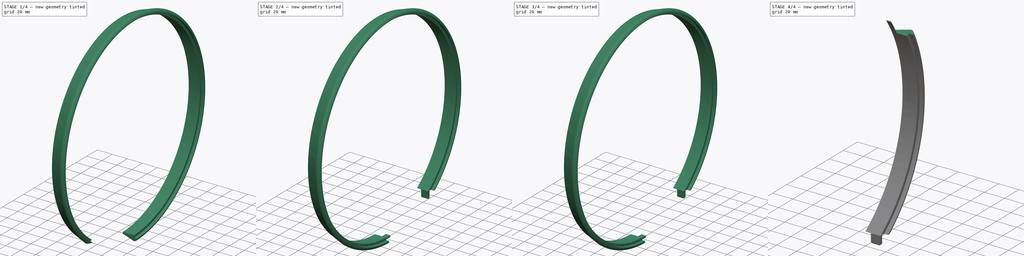
[diagram: build sequence overview — one tinted view per stage of 4, left to right]
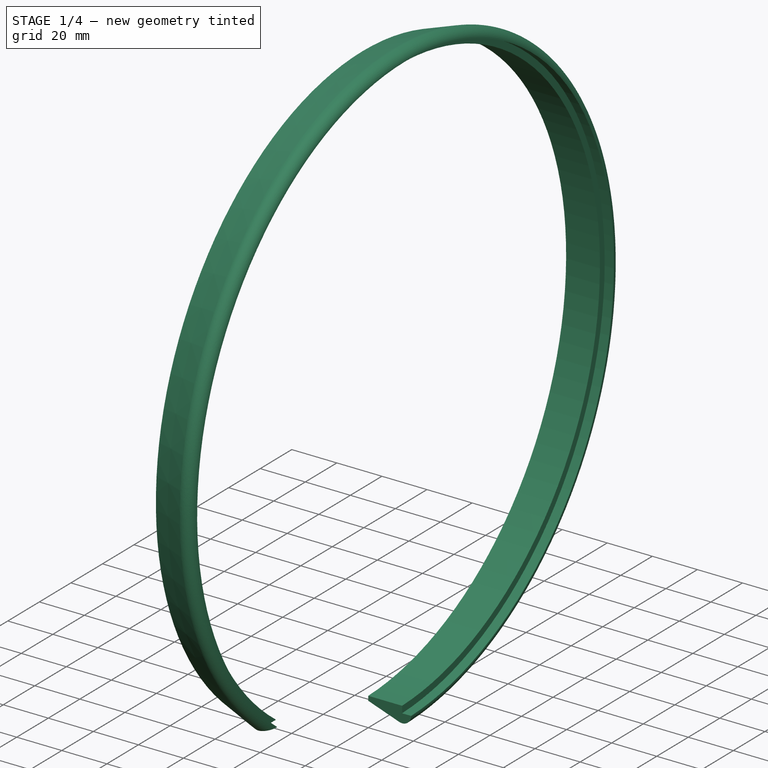
[diagram: stage 1 of 4 — iso view after this stage's code; geometry added in this stage tinted green]
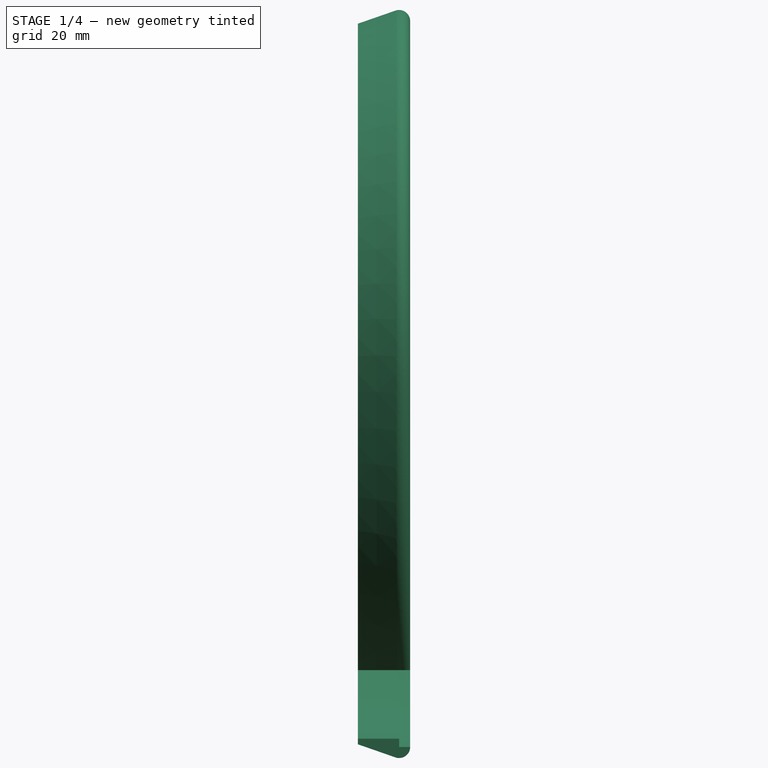
[diagram: stage 1 of 4 — front view after this stage's code; geometry added in this stage tinted green]
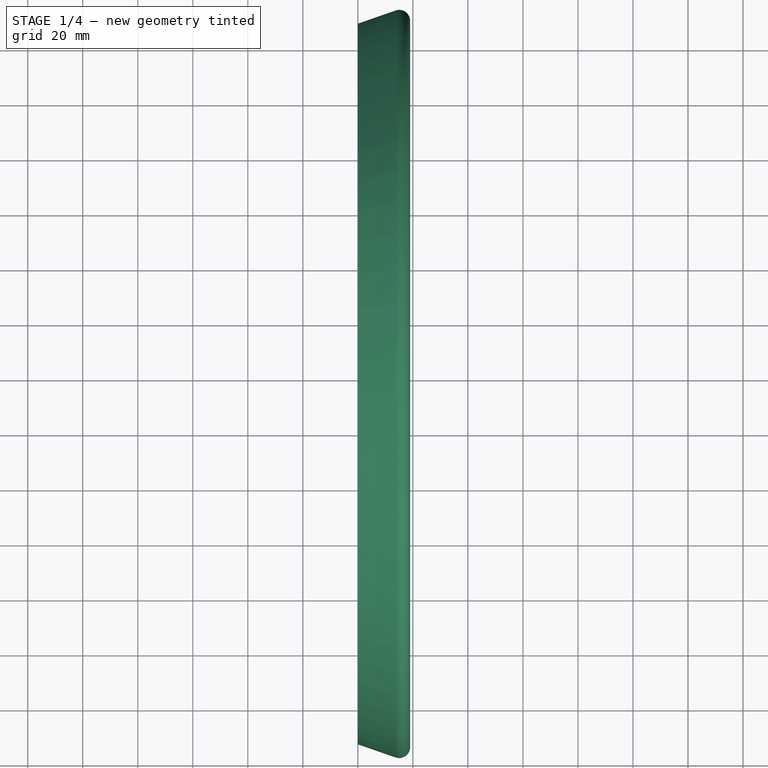
[diagram: stage 1 of 4 — top view after this stage's code; geometry added in this stage tinted green]
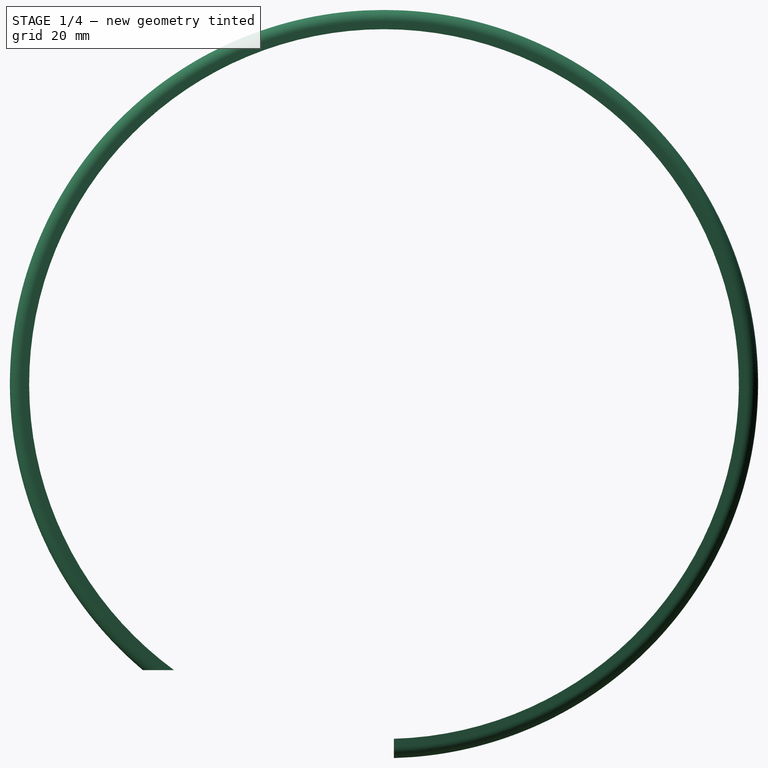
[diagram: stage 1 of 4 — right view after this stage's code; geometry added in this stage tinted green]
FCSTD DOCUMENT  (FreeCAD 0.16R6706 (Git))
Label: fancover
License: All rights reserved
LicenseURL: http://en.wikipedia.org/wiki/All_rights_reserved
objects: Sketcher::SketchObject×8, PartDesign::Chamfer×5, PartDesign::Pad×4, PartDesign::Pocket×2, PartDesign::Revolution×1, Part::Cut×1, Part::Mirroring×1
note: 29 computed .brp shape members not serialized (recipe doc carries the construction recipe); baked Part::Feature solids carry a one-line shape summary decoded from their .brp

FEATURE [Sketcher::SketchObject] Sketch
  Placement = pos=(0,136.4,0) rot=(1,0,0;1.5708rad)
  sketch-geometry (6):
    g0: LineSegment StartX=0 StartY=129 StartZ=0 EndX=15 EndY=129 EndZ=0
    g1: LineSegment StartX=15 StartY=129 StartZ=0 EndX=15 EndY=132 EndZ=0
    g2: LineSegment StartX=15 StartY=132 StartZ=0 EndX=19 EndY=132 EndZ=0
    g3: LineSegment StartX=0 StartY=129 StartZ=0 EndX=0 EndY=131 EndZ=0
    g4: LineSegment StartX=0 StartY=131 StartZ=0 EndX=13.6816 EndY=135.776 EndZ=0
    g5: ArcOfCircle CenterX=15 CenterY=132 CenterZ=0 NormalX=0 NormalY=0 NormalZ=1 Radius=4 StartAngle=0 EndAngle=1.90668
  constraints (17):
    c: PointOnObject(g0,g-2)
    c: Horizontal(g0)
    c: Coincident(g0,g1)
    c: Coincident(g1,g2)
    c: Horizontal(g2)
    c: Coincident(g0,g3)
    c: PointOnObject(g3,g-2)
    c: Coincident(g3,g4)
    c: Coincident(g5,g1)
    c: Coincident(g5,g2)
    c: Tangent(g4,g5) = 1.5708
    c: Vertical(g1)
    c: Distance(g1) = 3
    c: Distance(g2) = 4
    c: Distance(g0) = 15
    c: DistanceY(g-1,g0) = 129
    c: Distance(g3) = 2
FEATURE [PartDesign::Revolution] Revolution
  Angle = 360
  Axis = (1,0,0)
  Base = (0,136.4,0)
  Placement = pos=(0,136.4,0) rot=(1,0,0;1.5708rad)
  ReferenceAxis = -> Sketch [H_Axis]
  Sketch = -> Sketch
FEATURE [Sketcher::SketchObject] Sketch001
  Placement = pos=(0,0,0) rot=(1,0,0;1.5708rad)
  sketch-geometry (4):
    g0: LineSegment StartX=26.3001 StartY=-86.0128 StartZ=0 EndX=-7.20787 EndY=-86.0128 EndZ=0
    g1: LineSegment StartX=-7.20787 StartY=-86.0128 StartZ=0 EndX=-7.20787 EndY=107.855 EndZ=0
    g2: LineSegment StartX=-7.20787 StartY=107.855 StartZ=0 EndX=26.3001 EndY=107.855 EndZ=0
    g3: LineSegment StartX=26.3001 StartY=107.855 StartZ=0 EndX=26.3001 EndY=-86.0128 EndZ=0
  constraints (8):
    c: Coincident(g0,g1)
    c: Coincident(g1,g2)
    c: Coincident(g2,g3)
    c: Coincident(g3,g0)
    c: Horizontal(g0)
    c: Horizontal(g2)
    c: Vertical(g1)
    c: Vertical(g3)
FEATURE [Sketcher::SketchObject] Sketch002
  Placement = pos=(15,0,0) rot=(0.57735,0.57735,0.57735;2.0944rad)
  sketch-geometry (3):
    g0: Circle CenterX=0 CenterY=0 CenterZ=0 NormalX=0 NormalY=0 NormalZ=1 Radius=129
    g1: Circle CenterX=0 CenterY=0 CenterZ=0 NormalX=0 NormalY=0 NormalZ=1 Radius=5
    g2: Circle CenterX=0 CenterY=0 CenterZ=0 NormalX=0 NormalY=0 NormalZ=1 Radius=124
  constraints (6):
    c: Coincident(g0,g-1)
    c: Radius(g0) = 129
    c: Coincident(g1,g-1)
    c: Radius(g1) = 5
    c: Coincident(g2,g-1)
    c: Radius(g2) = 124
FEATURE [PartDesign::Pad] Pad
  Length = 10
  Length2 = 100
  Placement = pos=(0,0,0) rot=(1,0,0;1.5708rad)
  Sketch = -> Sketch001
  Type = 0
FEATURE [Part::Cut] Cut
  Base = -> Revolution
  Tool = -> Pad
FEATURE [Sketcher::SketchObject] Sketch003
  Placement = pos=(0,0,0) rot=(0.57735,-0.57735,-0.57735;2.0944rad)
  Support = -> Cut [Face6]
  sketch-geometry (4):
    g0: LineSegment StartX=0 StartY=-150 StartZ=0 EndX=-140 EndY=-150 EndZ=0
    g1: LineSegment StartX=-140 StartY=-150 StartZ=0 EndX=-140 EndY=-104 EndZ=0
    g2: LineSegment StartX=-140 StartY=-104 StartZ=0 EndX=0 EndY=-104 EndZ=0
    g3: LineSegment StartX=0 StartY=-104 StartZ=0 EndX=0 EndY=-150 EndZ=0
  constraints (12):
    c: Coincident(g0,g1)
    c: Coincident(g1,g2)
    c: Coincident(g2,g3)
    c: Coincident(g3,g0)
    c: Horizontal(g0)
    c: Horizontal(g2)
    c: Vertical(g1)
    c: Vertical(g3)
    c: PointOnObject(g2,g-2)
    c: Distance(g1) = 46
    c: DistanceY(g0,g-1) = 150
    c: Distance(g0) = 140
FEATURE [PartDesign::Pocket] Pocket
  Length = 21
  Sketch = -> Sketch003
  Type = 0
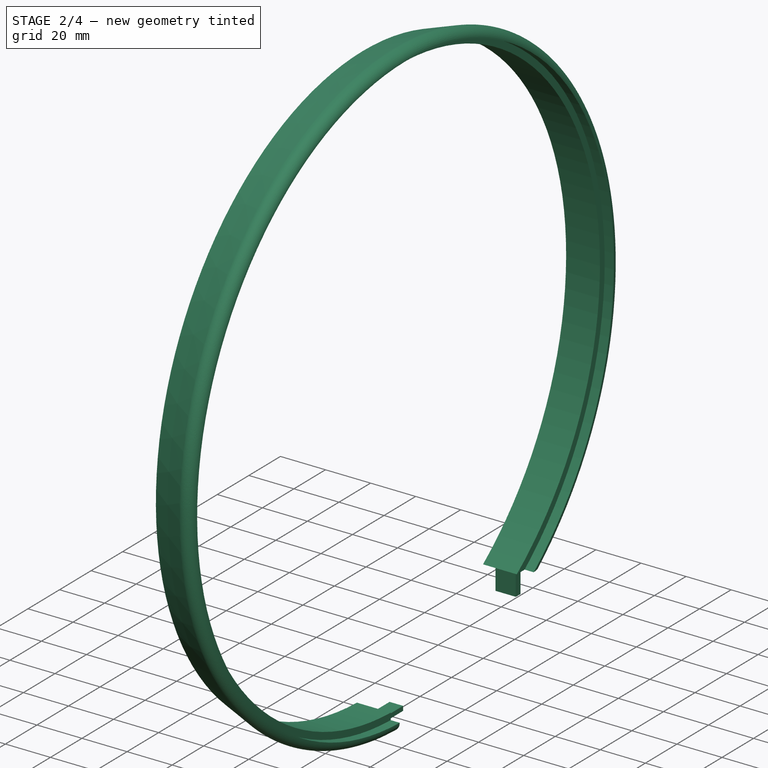
[diagram: stage 2 of 4 — iso view after this stage's code; geometry added in this stage tinted green]
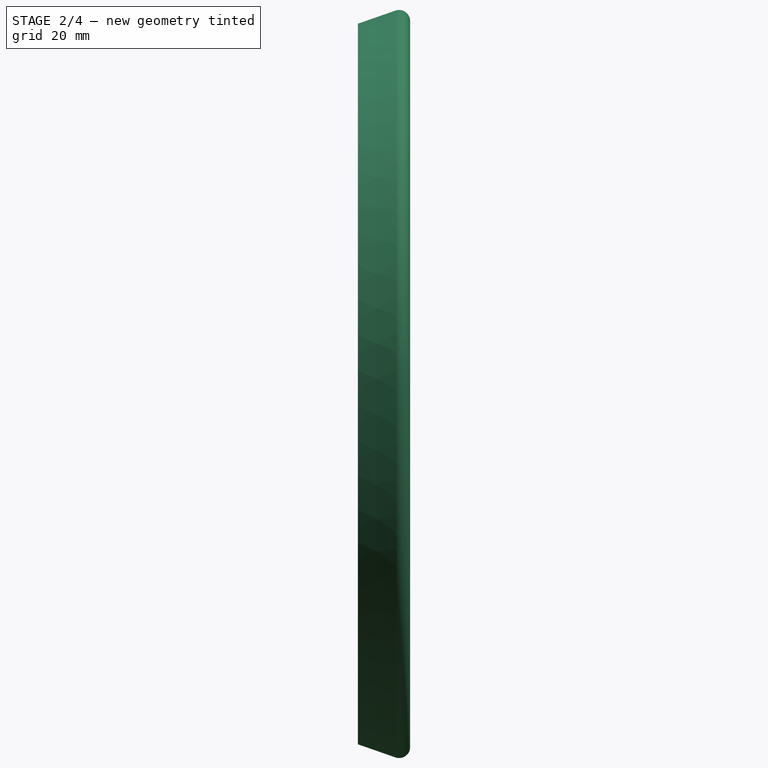
[diagram: stage 2 of 4 — front view after this stage's code; geometry added in this stage tinted green]
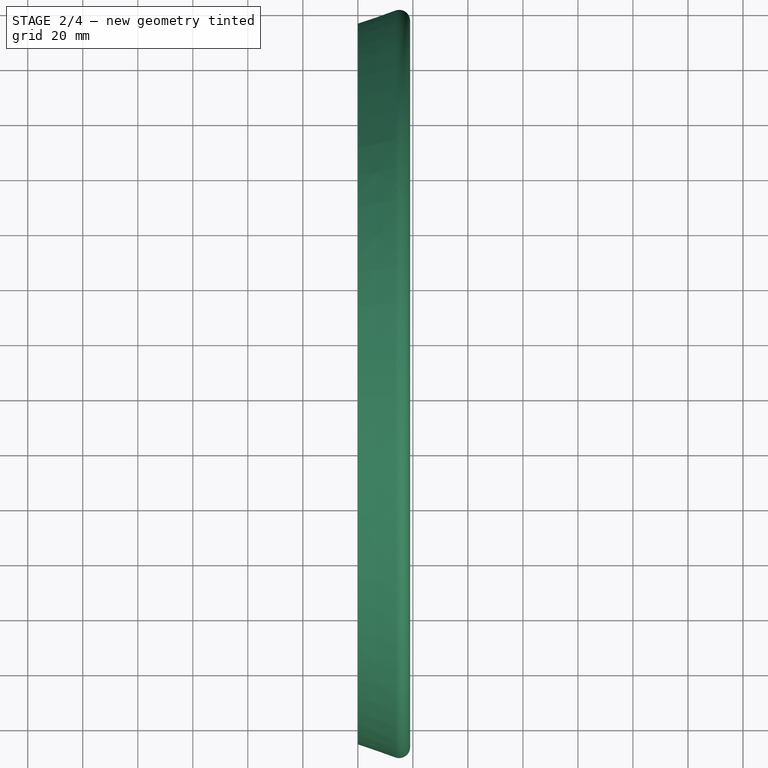
[diagram: stage 2 of 4 — top view after this stage's code; geometry added in this stage tinted green]
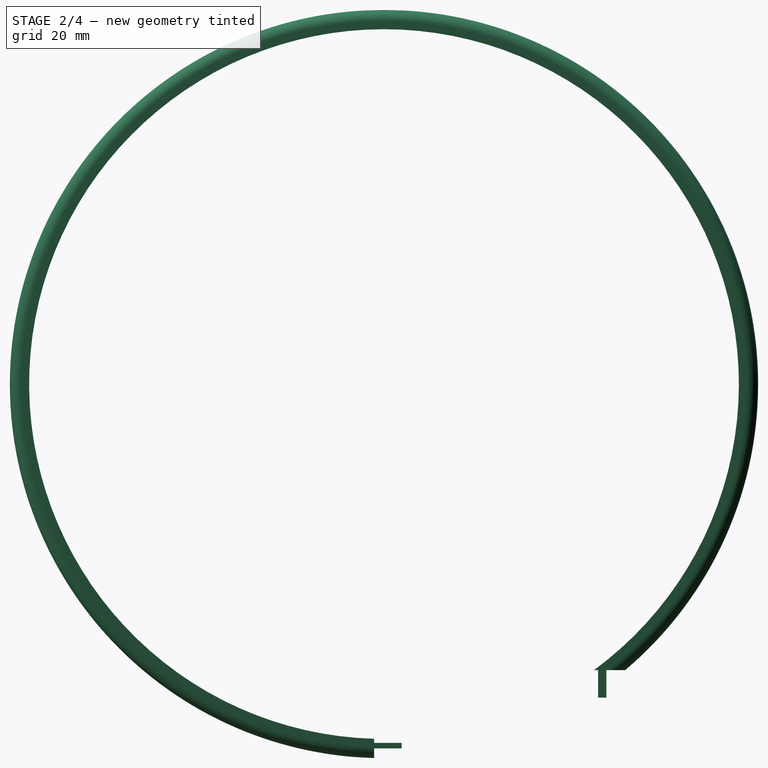
[diagram: stage 2 of 4 — right view after this stage's code; geometry added in this stage tinted green]
FEATURE [Part::Mirroring] Part__Mirroring  label="Pocket (Mirror #1)"
  Base = (0,0,0)
  Normal = (0,1,0)
  Source = -> Pocket
FEATURE [Sketcher::SketchObject] Sketch004
  ExternalGeometry = -> [Part__Mirroring]
  Placement = pos=(0,0,-104) rot=(1,0,0;3.14159rad)
  Support = -> Part__Mirroring [Face4]
  sketch-geometry (4):
    g0: LineSegment StartX=13.5 StartY=58.5783 StartZ=0 EndX=4.5 EndY=58.5783 EndZ=0
    g1: LineSegment StartX=4.5 StartY=58.5783 StartZ=0 EndX=4.5 EndY=55.5783 EndZ=0
    g2: LineSegment StartX=4.5 StartY=55.5783 StartZ=0 EndX=13.5 EndY=55.5783 EndZ=0
    g3: LineSegment StartX=13.5 StartY=55.5783 StartZ=0 EndX=13.5 EndY=58.5783 EndZ=0
  constraints (12):
    c: Coincident(g0,g1)
    c: Coincident(g1,g2)
    c: Coincident(g2,g3)
    c: Coincident(g3,g0)
    c: Horizontal(g0)
    c: Horizontal(g2)
    c: Vertical(g1)
    c: Vertical(g3)
    c: Distance(g3) = 3
    c: Distance(g0) = 9
    c: DistanceX(g0,g-3) = 1.5
    c: DistanceY(g0,g-3) = 1.5
FEATURE [PartDesign::Pad] Pad001
  Length = 10
  Length2 = 100
  Sketch = -> Sketch004
  Type = 0
FEATURE [Sketcher::SketchObject] Sketch005
  ExternalGeometry = -> [Pad001]
  Placement = pos=(0,-140,0) rot=(0,0.707107,0.707107;3.14159rad)
  Support = -> Pad001 [Face6]
  sketch-geometry (4):
    g0: LineSegment StartX=-13.5 StartY=-130.45 StartZ=0 EndX=-7.5 EndY=-130.45 EndZ=0
    g1: LineSegment StartX=-7.5 StartY=-130.45 StartZ=0 EndX=-7.5 EndY=-132.45 EndZ=0
    g2: LineSegment StartX=-7.5 StartY=-132.45 StartZ=0 EndX=-13.5 EndY=-132.45 EndZ=0
    g3: LineSegment StartX=-13.5 StartY=-132.45 StartZ=0 EndX=-13.5 EndY=-130.45 EndZ=0
  constraints (12):
    c: Coincident(g0,g1)
    c: Coincident(g1,g2)
    c: Coincident(g2,g3)
    c: Coincident(g3,g0)
    c: Horizontal(g0)
    c: Horizontal(g2)
    c: Vertical(g1)
    c: Vertical(g3)
    c: Distance(g0) = 6
    c: Distance(g1) = 2
    c: DistanceX(g-3,g0) = 1.5
    c: DistanceY(g0,g-3) = 1.5
FEATURE [PartDesign::Pad] Pad002
  Length = 10
  Length2 = 100
  Sketch = -> Sketch005
  Type = 0
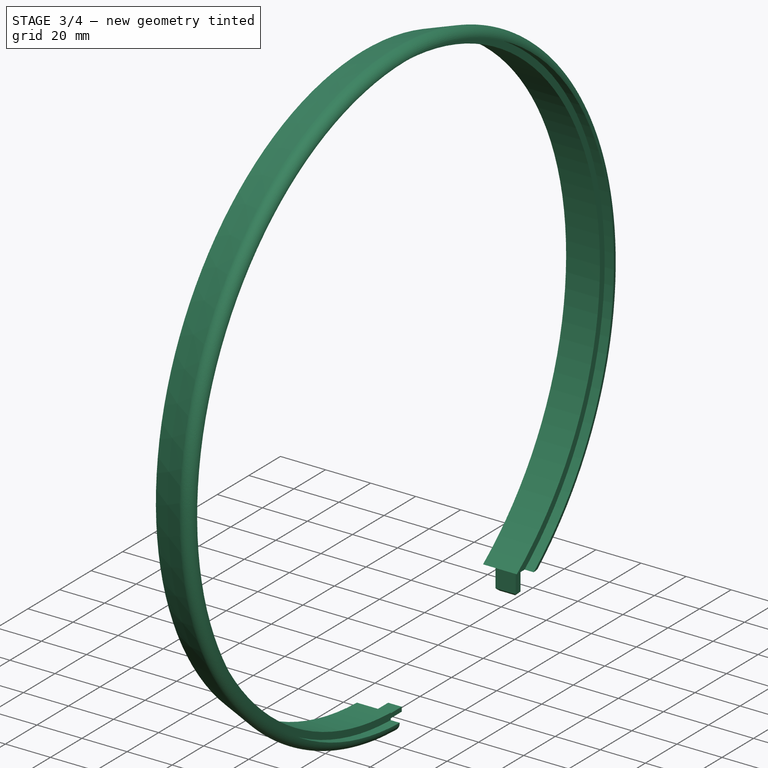
[diagram: stage 3 of 4 — iso view after this stage's code; geometry added in this stage tinted green]
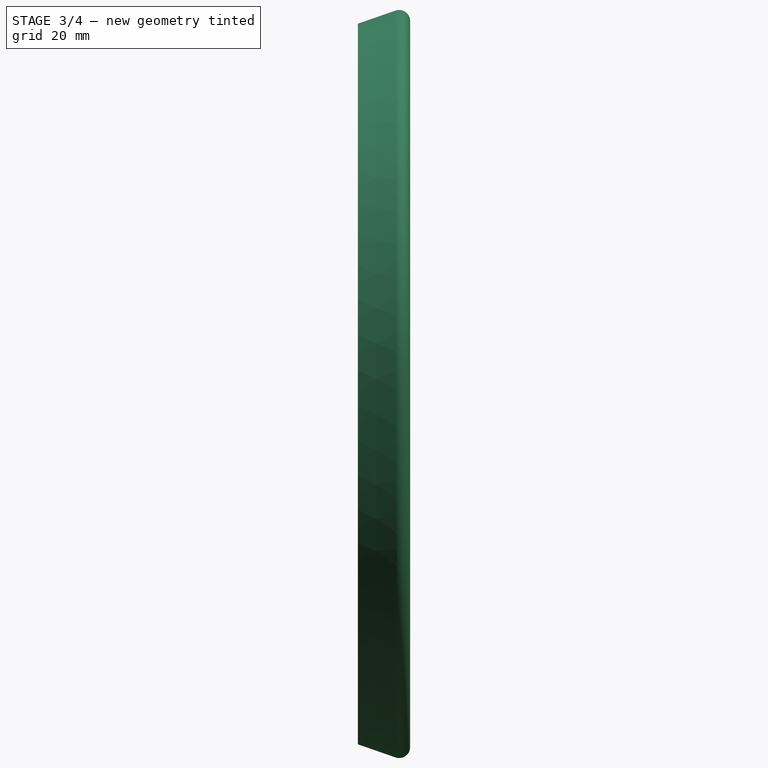
[diagram: stage 3 of 4 — front view after this stage's code; geometry added in this stage tinted green]
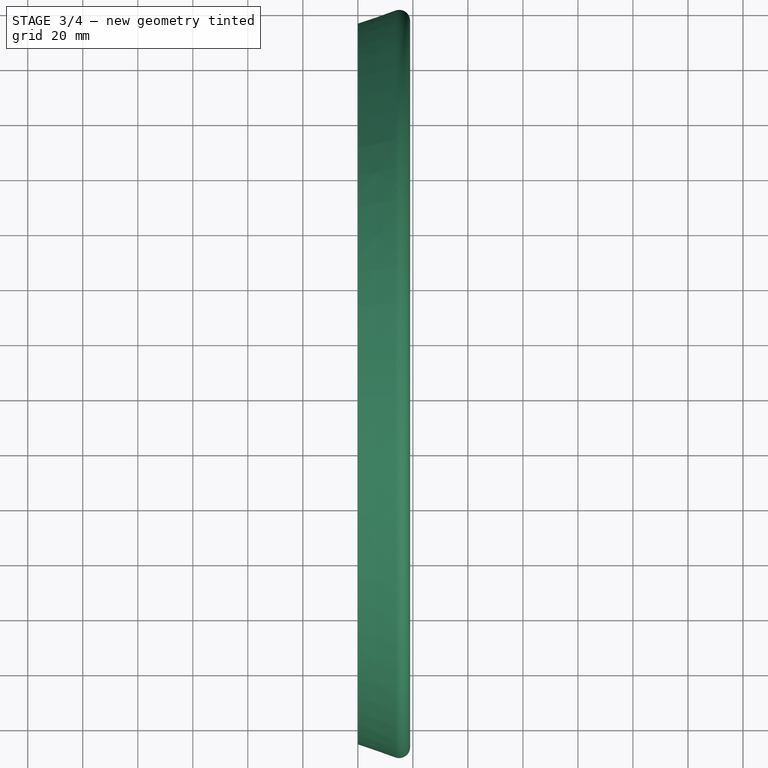
[diagram: stage 3 of 4 — top view after this stage's code; geometry added in this stage tinted green]
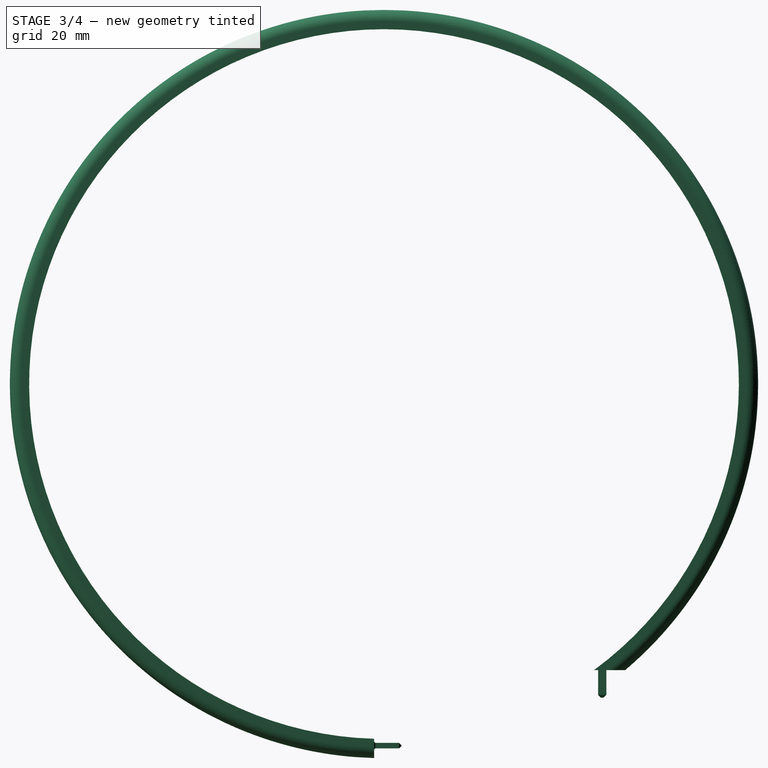
[diagram: stage 3 of 4 — right view after this stage's code; geometry added in this stage tinted green]
FEATURE [PartDesign::Chamfer] Chamfer002
  Base = -> Pad002 [Edge52,Edge46,Edge48,Edge50]
  Size = 0.9
FEATURE [PartDesign::Chamfer] Chamfer003
  Base = -> Chamfer002 [Edge7,Edge18,Edge3,Edge17]
  Size = 0.4
FEATURE [PartDesign::Chamfer] Chamfer
  Base = -> Chamfer003 [Edge62,Edge65,Edge67,Edge68]
  Size = 1
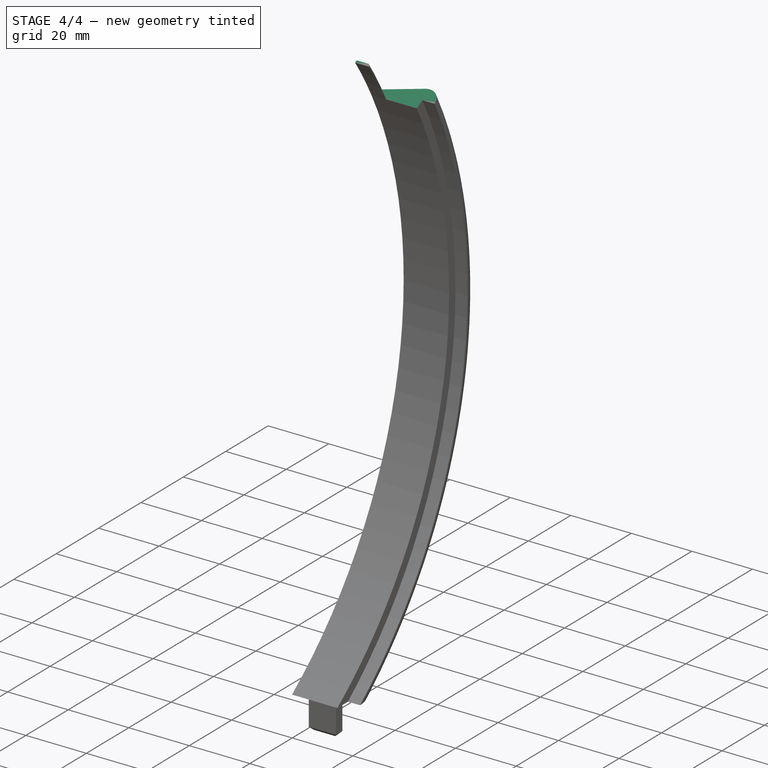
[diagram: stage 4 of 4 — iso view after this stage's code; geometry added in this stage tinted green]
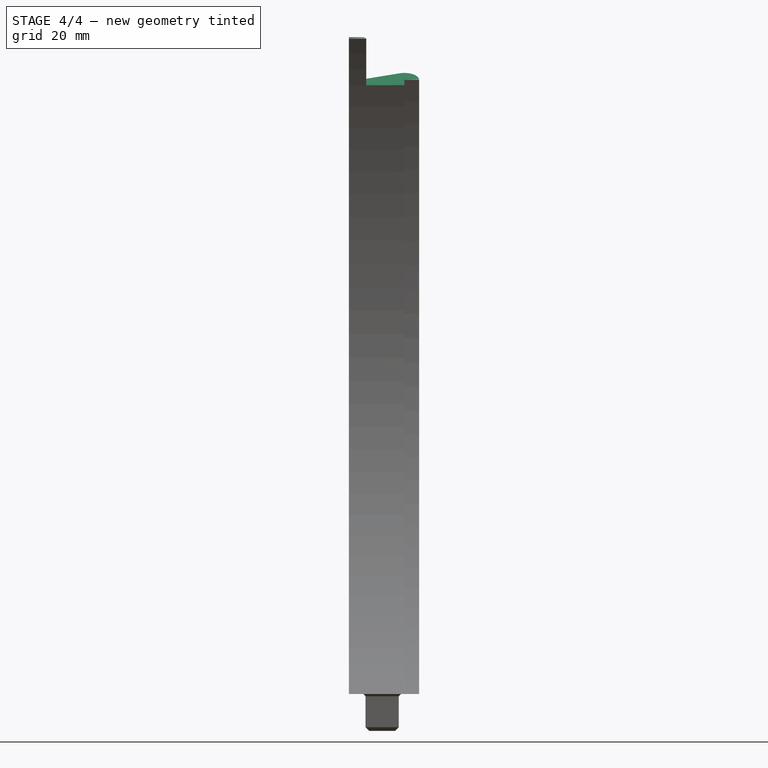
[diagram: stage 4 of 4 — front view after this stage's code; geometry added in this stage tinted green]
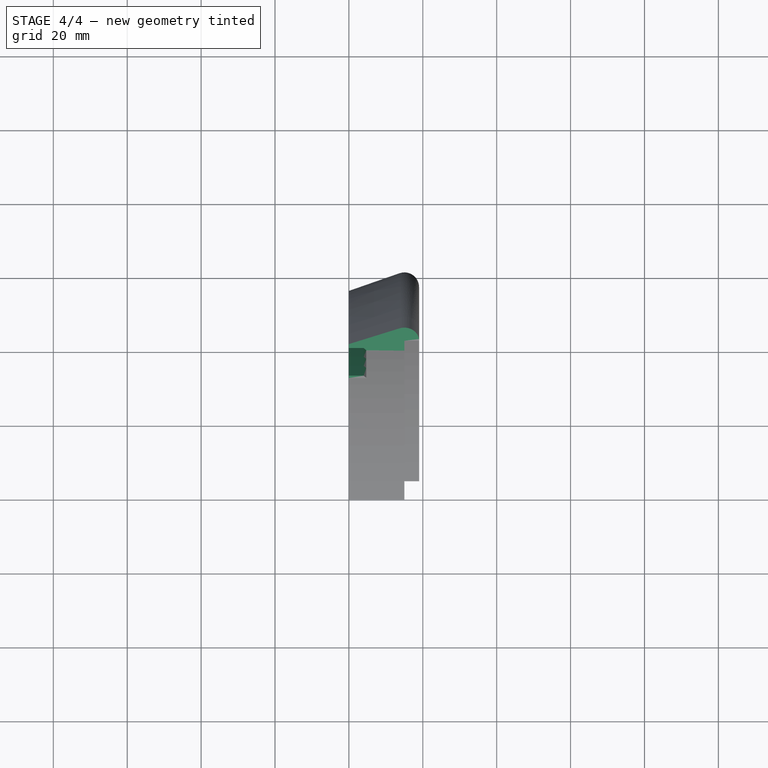
[diagram: stage 4 of 4 — top view after this stage's code; geometry added in this stage tinted green]
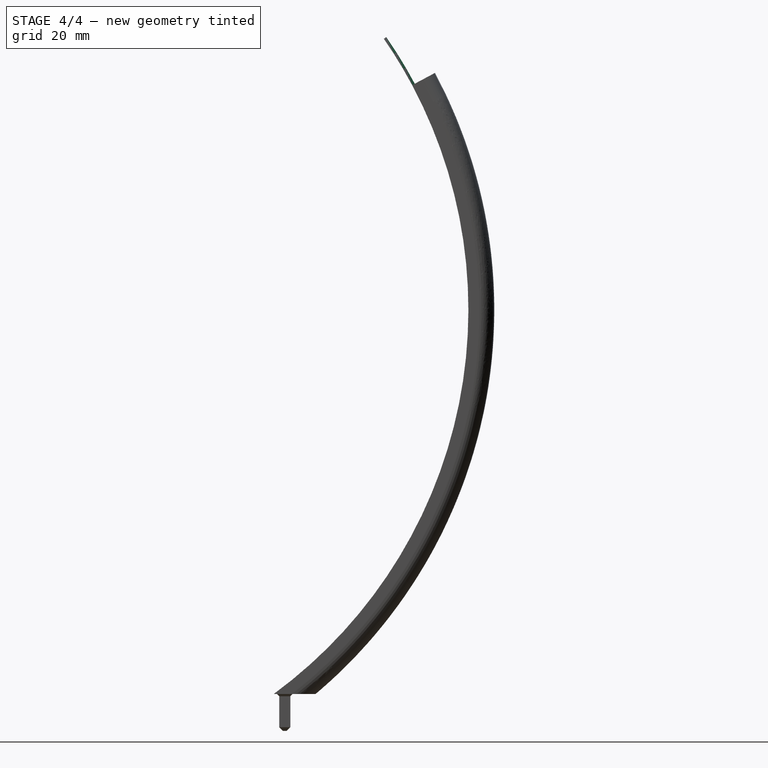
[diagram: stage 4 of 4 — right view after this stage's code; geometry added in this stage tinted green]
FEATURE [PartDesign::Chamfer] Chamfer004
  Base = -> Chamfer [Edge18,Edge3,Edge17,Edge7]
  Size = 0.6
FEATURE [Sketcher::SketchObject] Sketch006
  ExternalGeometry = -> [Chamfer004]
  Placement = pos=(15,0,0) rot=(0.57735,0.57735,0.57735;2.0944rad)
  Support = -> Chamfer004 [Face18]
  sketch-geometry (21):
    g0: LineSegment [constr] StartX=-136.4 StartY=0 StartZ=0 EndX=-191.281 EndY=166.679 EndZ=0
    g1: GeomPoint [constr] X=-136.4 Y=0 Z=0
    g2: GeomPoint [constr] X=-310.03 Y=-25.4257 Z=0
    g3: LineSegment [constr] StartX=-136.4 StartY=0 StartZ=0 EndX=-310.03 EndY=-25.4257 EndZ=0
    g4: LineSegment [constr] StartX=-136.4 StartY=0 StartZ=0 EndX=-141.186 EndY=-175.416 EndZ=0
    g5: LineSegment [constr] StartX=-136.4 StartY=0 StartZ=0 EndX=-28.3333 EndY=-138.258 EndZ=0
    g6: Circle [constr] CenterX=-136.4 CenterY=0 CenterZ=0 NormalX=0 NormalY=0 NormalZ=1 Radius=10
    g7: LineSegment [constr] StartX=-136.673 StartY=-9.99628 StartZ=0 EndX=-146.294 EndY=-1.44891 EndZ=0
    g8: LineSegment [constr] StartX=-146.294 StartY=-1.44891 StartZ=0 EndX=-139.527 EndY=9.49837 EndZ=0
    g9: LineSegment [constr] StartX=70.3046 StartY=-152.013 StartZ=0 EndX=270.305 EndY=-152.013 EndZ=0
    g10: LineSegment [constr] StartX=270.305 StartY=-152.013 StartZ=0 EndX=270.305 EndY=47.9865 EndZ=0
    g11: LineSegment [constr] StartX=270.305 StartY=47.9865 StartZ=0 EndX=70.3046 EndY=47.9865 EndZ=0
    g12: LineSegment [constr] StartX=70.3046 StartY=47.9865 StartZ=0 EndX=70.3046 EndY=-152.013 EndZ=0
    g13: LineSegment StartX=-136.4 StartY=0 StartZ=0 EndX=18.3701 EndY=82.7038 EndZ=0
    g14: LineSegment [constr] StartX=-139.527 StartY=9.49837 StartZ=0 EndX=-127.58 EndY=4.71297 EndZ=0
    g15: LineSegment [constr] StartX=-127.58 StartY=4.71297 StartZ=0 EndX=-130.242 EndY=-7.87879 EndZ=0
    g16: LineSegment StartX=-136.4 StartY=0 StartZ=0 EndX=-81.5191 EndY=-166.679 EndZ=0
    g17: ArcOfCircle CenterX=-136.4 CenterY=0 CenterZ=0 NormalX=0 NormalY=0 NormalZ=1 Radius=175.481 StartAngle=1.88888 EndAngle=3.287
    g18: ArcOfCircle CenterX=-136.4 CenterY=0 CenterZ=0 NormalX=0 NormalY=0 NormalZ=1 Radius=175.481 StartAngle=0.490761 EndAngle=1.88888
    g19: ArcOfCircle [constr] CenterX=-136.4 CenterY=0 CenterZ=0 NormalX=0 NormalY=0 NormalZ=1 Radius=175.481 StartAngle=5.03047 EndAngle=6.77395
    g20: ArcOfCircle CenterX=-136.4 CenterY=0 CenterZ=0 NormalX=0 NormalY=0 NormalZ=1 Radius=175.481 StartAngle=3.287 EndAngle=5.03047
  constraints (56):
    c: Coincident(g0,g-3)
    c: Coincident(g1,g0)
    c: Coincident(g3,g0)
    c: Coincident(g3,g2)
    c: Coincident(g4,g0)
    c: Coincident(g5,g0)
    c: Coincident(g6,g0)
    c: PointOnObject(g7,g4)
    c: PointOnObject(g7,g3)
    c: Coincident(g8,g7)
    c: PointOnObject(g8,g0)
    c: PointOnObject(g8,g6)
    c: PointOnObject(g7,g6)
    c: PointOnObject(g7,g6)
    c: Radius(g6) = 10
    c: Coincident(g9,g10)
    c: Coincident(g10,g11)
    c: Coincident(g11,g12)
    c: Coincident(g12,g9)
    c: Horizontal(g9)
    c: Horizontal(g11)
    c: Vertical(g10)
    c: Vertical(g12)
    c: Distance(g11) = 200
    c: Distance(g10) = 200
    c: Coincident(g13,g0)
    c: Coincident(g8,g14)
    c: PointOnObject(g14,g13)
    c: Coincident(g14,g15)
    c: PointOnObject(g15,g5)
    c: PointOnObject(g14,g6)
    c: PointOnObject(g15,g6)
    c: Equal(g15,g14)
    c: Equal(g14,g8)
    c: Equal(g8,g7)
    c: PointOnObject(g-4,g4)
    c: PointOnObject(g-3,g5)
    c: Equal(g13,g5)
    c: Equal(g5,g4)
    c: Equal(g4,g3)
    c: Equal(g3,g0)
    c: Coincident(g16,g0)
    c: Equal(g16,g4)
    c: Symmetric(g15,g7,g16)
    c: Coincident(g17,g0)
    c: Coincident(g17,g2)
    c: Coincident(g17,g0)
    c: Coincident(g18,g0)
    c: Coincident(g18,g0)
    c: Coincident(g18,g13)
    c: Coincident(g19,g0)
    c: Coincident(g19,g13)
    c: Coincident(g19,g16)
    c: Coincident(g20,g0)
    c: Coincident(g20,g16)
    c: Coincident(g20,g2)
FEATURE [PartDesign::Pocket] Pocket001
  Length = 30
  Midplane = true
  Sketch = -> Sketch006
  Type = 0
FEATURE [Sketcher::SketchObject] Sketch007
  ExternalGeometry = -> [Pocket001]
  Placement = pos=(0,0,0) rot=(0.57735,-0.57735,-0.57735;2.0944rad)
  Support = -> Pocket001 [Face15]
  sketch-geometry (5):
    g0: LineSegment [constr] StartX=136.4 StartY=0 StartZ=0 EndX=21.2319 EndY=79.6009 EndZ=0
    g1: ArcOfCircle CenterX=136.4 CenterY=0 CenterZ=0 NormalX=0 NormalY=0 NormalZ=1 Radius=129.8 StartAngle=2.53682 EndAngle=2.65083
    g2: ArcOfCircle CenterX=136.4 CenterY=0 CenterZ=0 NormalX=0 NormalY=0 NormalZ=1 Radius=129 StartAngle=2.53682 EndAngle=2.65083
    g3: LineSegment StartX=22.6253 StartY=60.7973 StartZ=0 EndX=21.9197 EndY=61.1743 EndZ=0
    g4: LineSegment StartX=30.2808 StartY=73.3465 StartZ=0 EndX=29.6227 EndY=73.8014 EndZ=0
  constraints (14):
    c: Coincident(g0,g-4)
    c: Coincident(g1,g0)
    c: Coincident(g2,g0)
    c: Radius(g1) = 129.8
    c: Coincident(g3,g2)
    c: Coincident(g3,g1)
    c: Coincident(g4,g1)
    c: Coincident(g2,g4)
    c: Coincident(g2,g-4)
    c: PointOnObject(g1,g-3)
    c: Distance(g2,g2) = 14.7
    c: Distance(g0) = 140
    c: PointOnObject(g1,g0)
    c: PointOnObject(g2,g0)
FEATURE [PartDesign::Pad] Pad003
  Length = 4.7
  Length2 = 100
  Reversed = true
  Sketch = -> Sketch007
  Type = 0
FEATURE [PartDesign::Chamfer] Chamfer005
  Base = -> Pad003 [Edge58]
  Size = 0.7
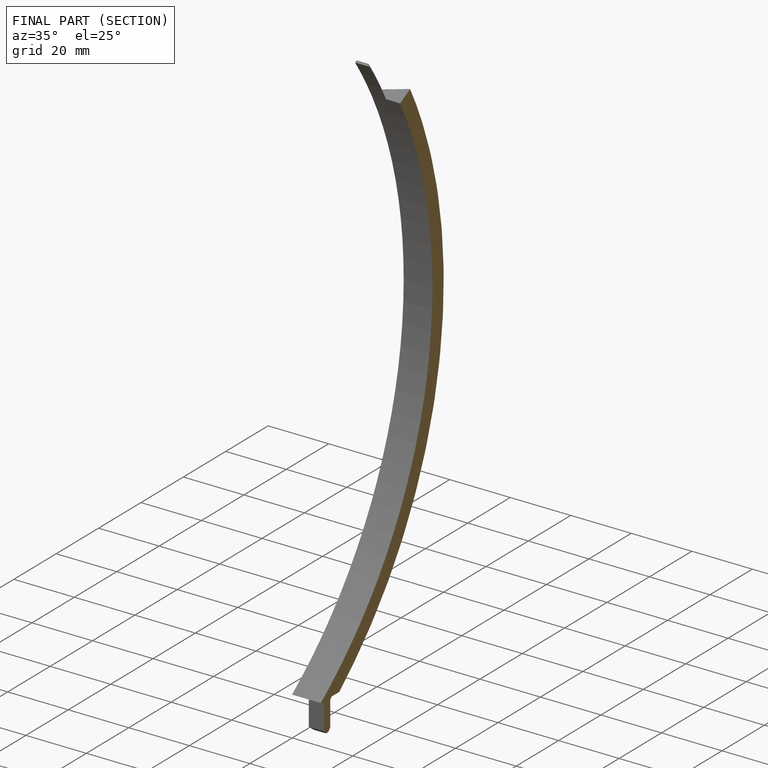
[diagram: finished part — half-section view (interior)]
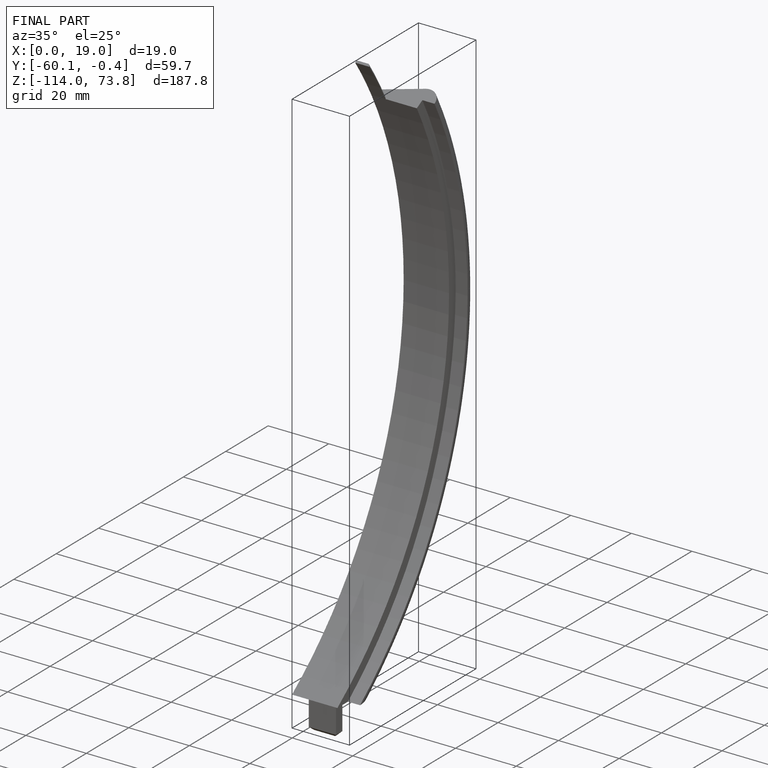
[diagram: finished part — iso view with bounding-box wireframe]
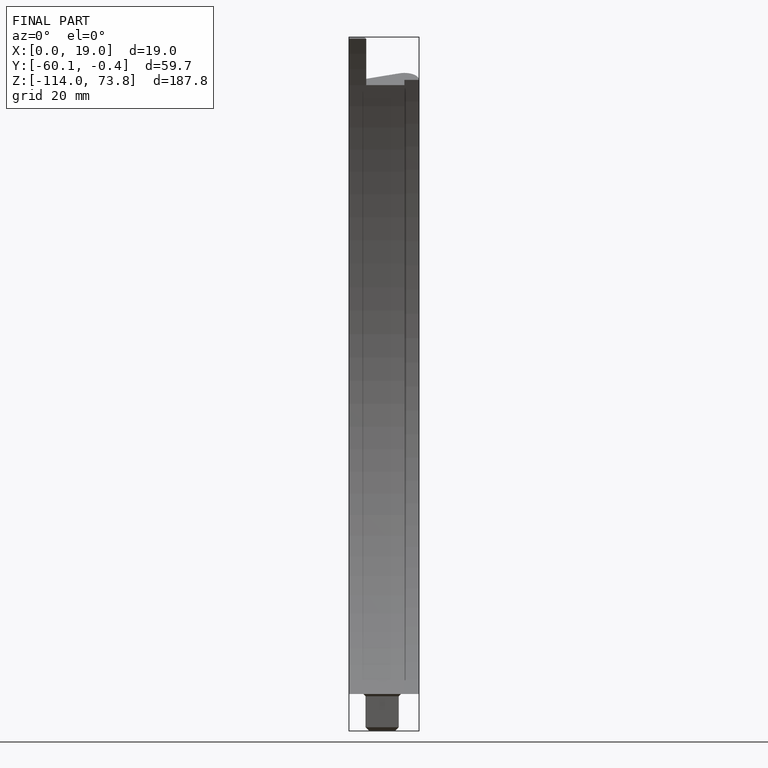
[diagram: finished part — front view with bounding-box wireframe]
